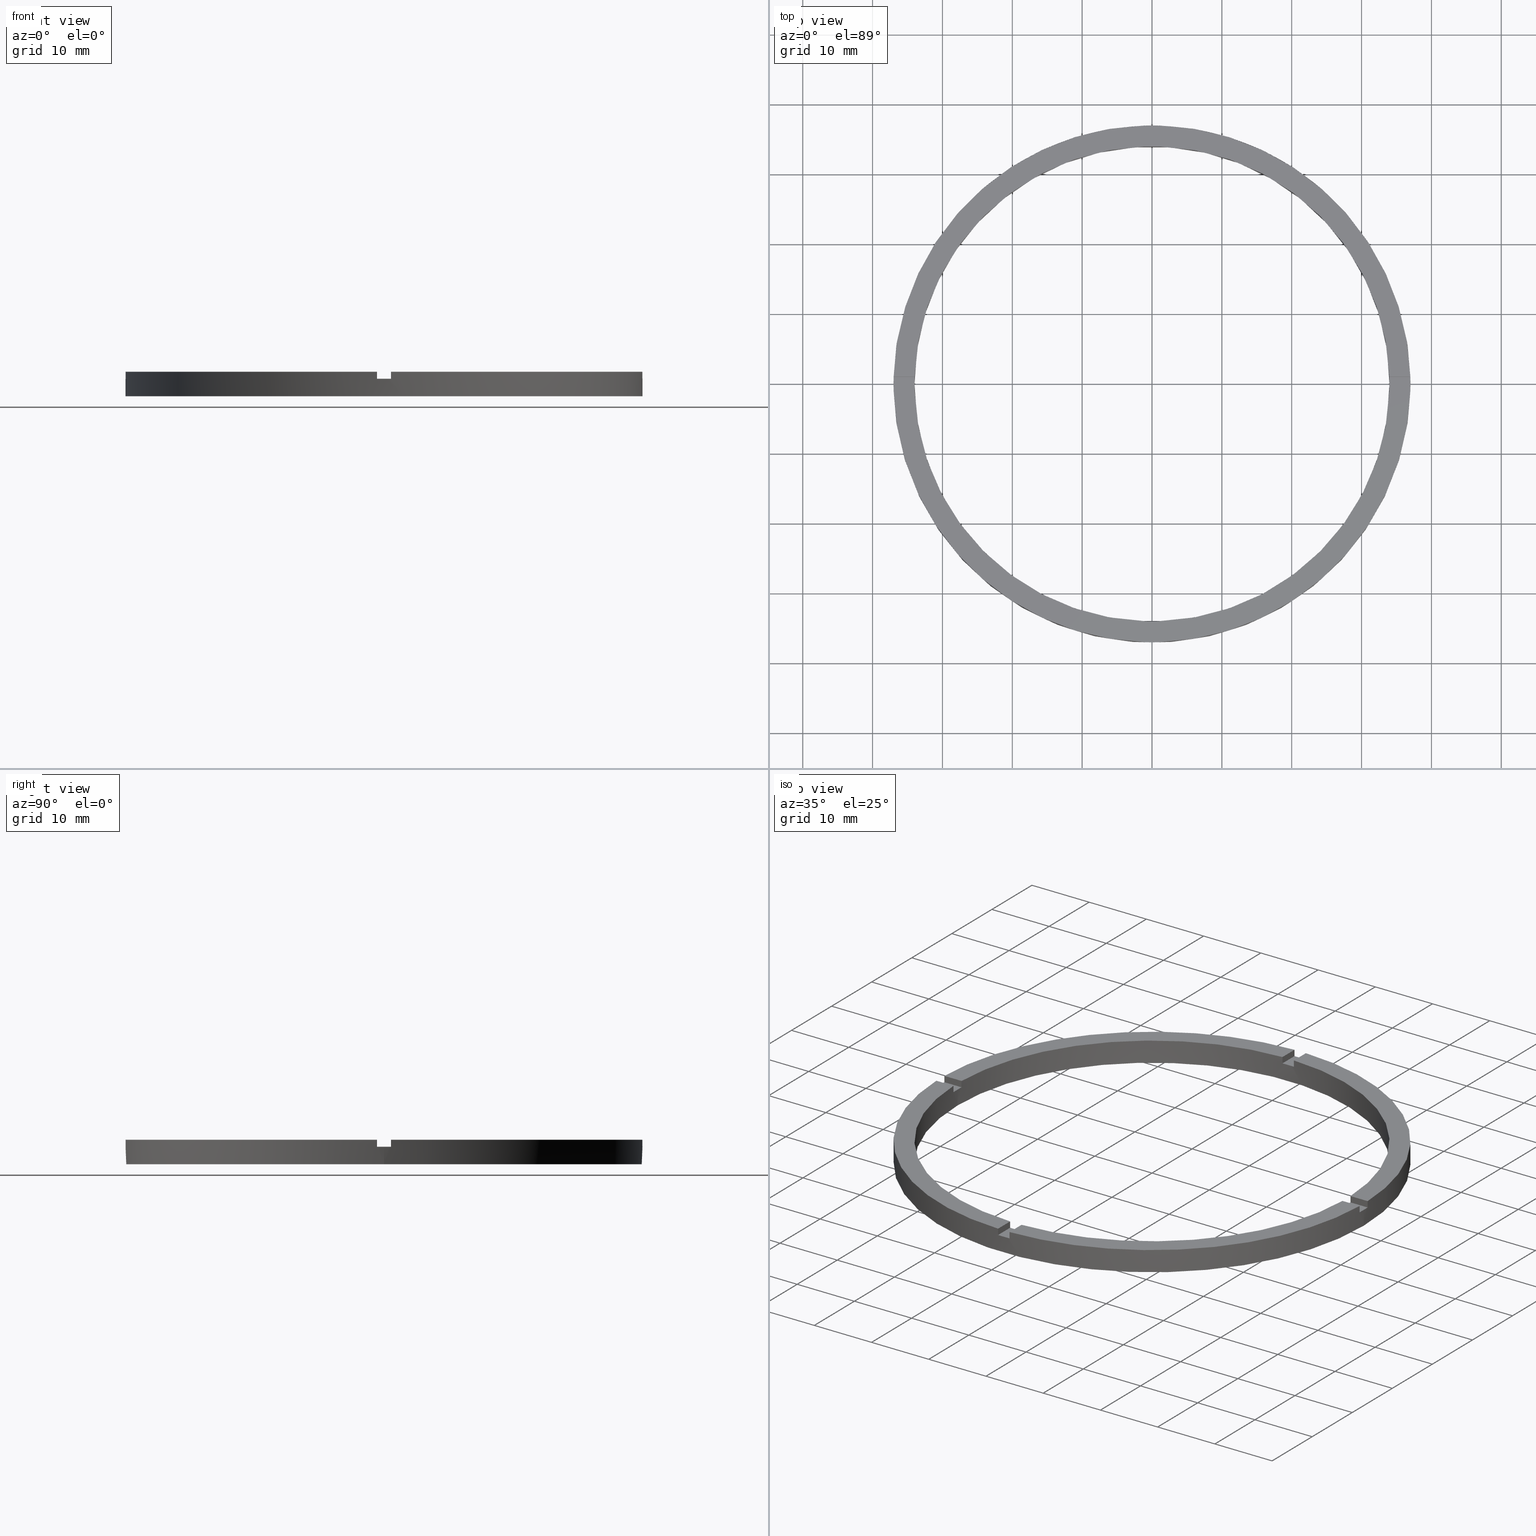
[diagram: canonical four-view strip — front | top / right | iso, engineering-drawing reading convention]
A machine part, canonical four-view strip (front | top / right | iso — engineering-drawing reading convention). The complete STEP part file that produces these views, byte-faithful:
ISO-10303-21;
HEADER;
FILE_DESCRIPTION (( 'STEP AP203' ),
    '1' );
FILE_NAME ('514152.step',
    '2024-12-26T02:42:34',
    ( 'MSI' ),
    ( '' ),
    'SwSTEP 2.0',
    'SolidWorks 2020',
    '' );
FILE_SCHEMA (( 'CONFIG_CONTROL_DESIGN' ));
ENDSEC;

DATA;
#1 = ORIENTED_EDGE ( 'NONE', *, *, #432, .F. ) ;
#2 = DIRECTION ( 'NONE',  ( -0.000000000000000000, -0.000000000000000000, -1.000000000000000000 ) ) ;
#3 = ORIENTED_EDGE ( 'NONE', *, *, #421, .F. ) ;
#4 = EDGE_CURVE ( 'NONE', #280, #445, #151, .T. ) ;
#5 = DIRECTION ( 'NONE',  ( 1.000000000000000000, 0.000000000000000000, 0.000000000000000000 ) ) ;
#6 = ORIENTED_EDGE ( 'NONE', *, *, #606, .T. ) ;
#7 = CARTESIAN_POINT ( 'NONE',  ( 0.000000000000000000, 0.000000000000000000, 2.500000000000000000 ) ) ;
#8 = DIRECTION ( 'NONE',  ( -0.000000000000000000, -0.000000000000000000, -1.000000000000000000 ) ) ;
#9 = EDGE_LOOP ( 'NONE', ( #477, #752, #726, #738 ) ) ;
#10 = ORIENTED_EDGE ( 'NONE', *, *, #94, .F. ) ;
#11 = DIRECTION ( 'NONE',  ( 1.000000000000000000, 0.000000000000000000, 0.000000000000000000 ) ) ;
#12 = ORIENTED_EDGE ( 'NONE', *, *, #437, .F. ) ;
#13 = AXIS2_PLACEMENT_3D ( 'NONE', #434, #485, #61 ) ;
#14 = CARTESIAN_POINT ( 'NONE',  ( 0.000000000000000000, 0.000000000000000000, 2.500000000000000000 ) ) ;
#15 = VERTEX_POINT ( 'NONE', #210 ) ;
#16 = ORIENTED_EDGE ( 'NONE', *, *, #722, .T. ) ;
#17 = DIRECTION ( 'NONE',  ( 0.000000000000000000, 0.000000000000000000, 1.000000000000000000 ) ) ;
#18 = DIRECTION ( 'NONE',  ( 1.000000000000000000, 0.000000000000000000, -0.000000000000000000 ) ) ;
#19 = EDGE_LOOP ( 'NONE', ( #641, #265, #134, #690 ) ) ;
#20 = DIRECTION ( 'NONE',  ( 1.000000000000000000, 0.000000000000000000, 0.000000000000000000 ) ) ;
#21 = VECTOR ( 'NONE', #282, 1000.000000000000000 ) ;
#22 = VERTEX_POINT ( 'NONE', #469 ) ;
#23 = EDGE_CURVE ( 'NONE', #697, #442, #661, .T. ) ;
#24 = PERSON ( 'δָ��', 'δָ��', 'δָ��', ('δָ��'), ('δָ��'), ('δָ��') ) ;
#25 = EDGE_LOOP ( 'NONE', ( #193, #266, #494, #447 ) ) ;
#26 = AXIS2_PLACEMENT_3D ( 'NONE', #634, #361, #176 ) ;
#27 = CARTESIAN_POINT ( 'NONE',  ( -36.98648401781385786, 0.9999999999999726885, 3.500000000000000000 ) ) ;
#28 = ADVANCED_FACE ( 'NONE', ( #672 ), #136, .F. ) ;
#29 = DIRECTION ( 'NONE',  ( 1.301042606982605074E-16, -1.000000000000000000, 0.000000000000000000 ) ) ;
#30 = EDGE_CURVE ( 'NONE', #772, #405, #418, .T. ) ;
#31 = DESIGN_CONTEXT ( 'detailed design', #749, 'design' ) ;
#32 = AXIS2_PLACEMENT_3D ( 'NONE', #399, #497, #633 ) ;
#33 = PERSON_AND_ORGANIZATION_ROLE ( 'creator' ) ;
#34 = CC_DESIGN_PERSON_AND_ORGANIZATION_ASSIGNMENT ( #97, #44, ( #760 ) ) ;
#35 = APPROVAL_STATUS ( 'not_yet_approved' ) ;
#36 = EDGE_CURVE ( 'NONE', #701, #185, #415, .T. ) ;
#37 = LINE ( 'NONE', #518, #317 ) ;
#38 = DIRECTION ( 'NONE',  ( 1.000000000000000000, 0.000000000000000000, 0.000000000000000000 ) ) ;
#39 = VECTOR ( 'NONE', #47, 1000.000000000000000 ) ;
#40 = PLANE ( 'NONE',  #26 ) ;
#41 = DIRECTION ( 'NONE',  ( 0.000000000000000000, 0.000000000000000000, 1.000000000000000000 ) ) ;
#42 = CIRCLE ( 'NONE', #630, 34.00000000000000000 ) ;
#43 = DIRECTION ( 'NONE',  ( 1.000000000000000000, 0.000000000000000000, 0.000000000000000000 ) ) ;
#44 = PERSON_AND_ORGANIZATION_ROLE ( 'design_supplier' ) ;
#45 = DIRECTION ( 'NONE',  ( 0.000000000000000000, 0.000000000000000000, 1.000000000000000000 ) ) ;
#46 = EDGE_CURVE ( 'NONE', #701, #452, #153, .T. ) ;
#47 = DIRECTION ( 'NONE',  ( -0.000000000000000000, -0.000000000000000000, -1.000000000000000000 ) ) ;
#48 = VECTOR ( 'NONE', #645, 1000.000000000000000 ) ;
#49 = FACE_OUTER_BOUND ( 'NONE', #209, .T. ) ;
#50 = CIRCLE ( 'NONE', #455, 34.00000000000000000 ) ;
#51 = CARTESIAN_POINT ( 'NONE',  ( -27.00000000000018474, -1.000000000000025313, 2.500000000000000000 ) ) ;
#52 = VECTOR ( 'NONE', #2, 1000.000000000000000 ) ;
#53 = CARTESIAN_POINT ( 'NONE',  ( -1.000000000000025091, 33.98529093593285211, 2.500000000000000000 ) ) ;
#54 = VECTOR ( 'NONE', #181, 1000.000000000000000 ) ;
#55 = CARTESIAN_POINT ( 'NONE',  ( 26.99999999999998934, -1.000000000000158318, 2.500000000000000000 ) ) ;
#56 = LINE ( 'NONE', #700, #39 ) ;
#57 = VECTOR ( 'NONE', #152, 1000.000000000000000 ) ;
#58 = CARTESIAN_POINT ( 'NONE',  ( -36.98648401781385786, -1.000000000000027311, 3.500000000000000000 ) ) ;
#59 = VECTOR ( 'NONE', #426, 1000.000000000000000 ) ;
#60 = CARTESIAN_POINT ( 'NONE',  ( 0.000000000000000000, 0.000000000000000000, 0.000000000000000000 ) ) ;
#61 = DIRECTION ( 'NONE',  ( -1.000000000000000000, 0.000000000000000000, 0.000000000000000000 ) ) ;
#62 = AXIS2_PLACEMENT_3D ( 'NONE', #7, #199, #139 ) ;
#63 = LINE ( 'NONE', #291, #321 ) ;
#64 = EDGE_CURVE ( 'NONE', #665, #185, #157, .T. ) ;
#65 = DATE_AND_TIME ( #573, #605 ) ;
#66 = DIRECTION ( 'NONE',  ( 1.000000000000000000, 0.000000000000000000, 0.000000000000000000 ) ) ;
#67 = LINE ( 'NONE', #211, #597 ) ;
#68 = AXIS2_PLACEMENT_3D ( 'NONE', #457, #711, #402 ) ;
#69 = FACE_OUTER_BOUND ( 'NONE', #655, .T. ) ;
#70 = PERSON_AND_ORGANIZATION ( #24, #87 ) ;
#71 = LINE ( 'NONE', #96, #334 ) ;
#72 = FACE_OUTER_BOUND ( 'NONE', #412, .T. ) ;
#73 = CARTESIAN_POINT ( 'NONE',  ( 0.000000000000000000, 0.000000000000000000, 2.500000000000000000 ) ) ;
#74 = CYLINDRICAL_SURFACE ( 'NONE', #522, 37.00000000000000000 ) ;
#75 = DIRECTION ( 'NONE',  ( -0.000000000000000000, -1.000000000000000000, -0.000000000000000000 ) ) ;
#76 = LINE ( 'NONE', #86, #84 ) ;
#77 = AXIS2_PLACEMENT_3D ( 'NONE', #502, #78, #543 ) ;
#78 = DIRECTION ( 'NONE',  ( 0.000000000000000000, 0.000000000000000000, 1.000000000000000000 ) ) ;
#79 = FACE_OUTER_BOUND ( 'NONE', #268, .T. ) ;
#80 = FACE_OUTER_BOUND ( 'NONE', #277, .T. ) ;
#81 = APPROVAL_PERSON_ORGANIZATION ( #95, #550, #287 ) ;
#82 = CIRCLE ( 'NONE', #138, 37.00000000000000000 ) ;
#83 = EDGE_CURVE ( 'NONE', #140, #442, #427, .T. ) ;
#84 = VECTOR ( 'NONE', #173, 1000.000000000000000 ) ;
#85 = APPROVAL_DATE_TIME ( #604, #408 ) ;
#86 = CARTESIAN_POINT ( 'NONE',  ( 0.9999999999998400169, -36.98648401781386497, 3.500000000000000000 ) ) ;
#87 = ORGANIZATION ( 'δָ��', 'δָ��', '' ) ;
#88 = CYLINDRICAL_SURFACE ( 'NONE', #106, 34.00000000000000000 ) ;
#89 = COORDINATED_UNIVERSAL_TIME_OFFSET ( 8, 0, .AHEAD. ) ;
#90 = CARTESIAN_POINT ( 'NONE',  ( 0.000000000000000000, 0.000000000000000000, 0.000000000000000000 ) ) ;
#91 = SHAPE_DEFINITION_REPRESENTATION ( #498, #596 ) ;
#92 = CC_DESIGN_DATE_AND_TIME_ASSIGNMENT ( #343, #458, ( #487 ) ) ;
#93 = ADVANCED_FACE ( 'NONE', ( #162 ), #231, .F. ) ;
#94 = EDGE_CURVE ( 'NONE', #657, #417, #161, .T. ) ;
#95 = PERSON_AND_ORGANIZATION ( #24, #87 ) ;
#96 = CARTESIAN_POINT ( 'NONE',  ( -1.000000000000025091, 33.98529093593285211, 3.500000000000000000 ) ) ;
#97 = PERSON_AND_ORGANIZATION ( #24, #87 ) ;
#98 = CALENDAR_DATE ( 2024, 26, 12 ) ;
#99 =( LENGTH_UNIT ( ) NAMED_UNIT ( * ) SI_UNIT ( .MILLI., .METRE. ) );
#100 = CARTESIAN_POINT ( 'NONE',  ( 0.000000000000000000, 0.000000000000000000, 2.500000000000000000 ) ) ;
#101 = EDGE_CURVE ( 'NONE', #452, #195, #423, .T. ) ;
#102 = CARTESIAN_POINT ( 'NONE',  ( -34.00000000000000000, 0.000000000000000000, 0.000000000000000000 ) ) ;
#103 = APPLICATION_PROTOCOL_DEFINITION ( 'international standard', 'config_control_design', 1994, #774 ) ;
#104 = CIRCLE ( 'NONE', #257, 37.00000000000000000 ) ;
#105 = CARTESIAN_POINT ( 'NONE',  ( -33.98529093593285921, 0.9999999999999731326, 2.500000000000000000 ) ) ;
#106 = AXIS2_PLACEMENT_3D ( 'NONE', #482, #221, #628 ) ;
#107 = DIRECTION ( 'NONE',  ( 1.000000000000000000, 0.000000000000000000, 0.000000000000000000 ) ) ;
#108 = DIRECTION ( 'NONE',  ( -1.301042606982605074E-16, 1.000000000000000000, 0.000000000000000000 ) ) ;
#109 = EDGE_CURVE ( 'NONE', #258, #715, #668, .T. ) ;
#110 = VECTOR ( 'NONE', #307, 1000.000000000000000 ) ;
#111 = VECTOR ( 'NONE', #289, 1000.000000000000000 ) ;
#112 = CARTESIAN_POINT ( 'NONE',  ( -33.98529093593285921, 0.9999999999999731326, 3.500000000000000000 ) ) ;
#113 = APPROVAL_STATUS ( 'not_yet_approved' ) ;
#114 = DIRECTION ( 'NONE',  ( 0.000000000000000000, 0.000000000000000000, 1.000000000000000000 ) ) ;
#115 = LINE ( 'NONE', #474, #376 ) ;
#116 = AXIS2_PLACEMENT_3D ( 'NONE', #73, #310, #38 ) ;
#117 = APPROVAL_STATUS ( 'not_yet_approved' ) ;
#118 = EDGE_CURVE ( 'NONE', #465, #659, #166, .T. ) ;
#119 = PLANE ( 'NONE',  #777 ) ;
#120 = VECTOR ( 'NONE', #169, 1000.000000000000000 ) ;
#121 = PLANE ( 'NONE',  #527 ) ;
#122 = EDGE_CURVE ( 'NONE', #715, #659, #675, .T. ) ;
#123 = DIRECTION ( 'NONE',  ( -6.505213034913025371E-17, 1.000000000000000000, 0.000000000000000000 ) ) ;
#124 = CARTESIAN_POINT ( 'NONE',  ( 0.000000000000000000, 0.000000000000000000, 2.500000000000000000 ) ) ;
#125 = DIRECTION ( 'NONE',  ( 6.505213034913025371E-17, -1.000000000000000000, 0.000000000000000000 ) ) ;
#126 = VERTEX_POINT ( 'NONE', #489 ) ;
#127 = EDGE_LOOP ( 'NONE', ( #217, #695, #767, #3 ) ) ;
#128 = CARTESIAN_POINT ( 'NONE',  ( 0.000000000000000000, 0.000000000000000000, 3.500000000000000000 ) ) ;
#129 = DIRECTION ( 'NONE',  ( -0.000000000000000000, -0.000000000000000000, -1.000000000000000000 ) ) ;
#130 = EDGE_CURVE ( 'NONE', #140, #22, #164, .T. ) ;
#131 = CARTESIAN_POINT ( 'NONE',  ( -1.000000000000160094, -36.98648401781385076, 2.500000000000000000 ) ) ;
#132 = DIRECTION ( 'NONE',  ( 0.000000000000000000, 0.000000000000000000, 1.000000000000000000 ) ) ;
#133 = DIRECTION ( 'NONE',  ( 0.000000000000000000, 1.000000000000000000, 0.000000000000000000 ) ) ;
#134 = ORIENTED_EDGE ( 'NONE', *, *, #261, .F. ) ;
#135 = ORIENTED_EDGE ( 'NONE', *, *, #453, .T. ) ;
#136 = PLANE ( 'NONE',  #747 ) ;
#137 = CARTESIAN_POINT ( 'NONE',  ( -1.000000000000025091, 36.98648401781385786, 3.500000000000000000 ) ) ;
#138 = AXIS2_PLACEMENT_3D ( 'NONE', #678, #216, #483 ) ;
#139 = DIRECTION ( 'NONE',  ( 1.000000000000000000, 0.000000000000000000, -0.000000000000000000 ) ) ;
#140 = VERTEX_POINT ( 'NONE', #105 ) ;
#141 = DIRECTION ( 'NONE',  ( 0.000000000000000000, 0.000000000000000000, 1.000000000000000000 ) ) ;
#142 = PLANE ( 'NONE',  #223 ) ;
#143 = CC_DESIGN_APPROVAL ( #550, ( #314 ) ) ;
#144 = ORIENTED_EDGE ( 'NONE', *, *, #285, .T. ) ;
#145 = ORIENTED_EDGE ( 'NONE', *, *, #558, .F. ) ;
#146 = EDGE_CURVE ( 'NONE', #208, #440, #365, .T. ) ;
#147 = EDGE_LOOP ( 'NONE', ( #388, #651, #391, #215, #16, #468, #135, #702, #401, #449, #191, #516 ) ) ;
#148 = DIRECTION ( 'NONE',  ( 1.000000000000000000, 0.000000000000000000, 0.000000000000000000 ) ) ;
#149 = ORIENTED_EDGE ( 'NONE', *, *, #23, .T. ) ;
#150 = EDGE_LOOP ( 'NONE', ( #12, #404 ) ) ;
#151 = CIRCLE ( 'NONE', #705, 34.00000000000000000 ) ;
#152 = DIRECTION ( 'NONE',  ( -1.000000000000000000, -6.505213034913025371E-17, -0.000000000000000000 ) ) ;
#153 = CIRCLE ( 'NONE', #435, 37.00000000000000000 ) ;
#154 = DIRECTION ( 'NONE',  ( 1.951563910473907735E-16, -1.000000000000000000, 0.000000000000000000 ) ) ;
#155 = VERTEX_POINT ( 'NONE', #284 ) ;
#156 = AXIS2_PLACEMENT_3D ( 'NONE', #128, #730, #637 ) ;
#157 = LINE ( 'NONE', #288, #674 ) ;
#158 = VECTOR ( 'NONE', #667, 1000.000000000000000 ) ;
#159 = PERSON_AND_ORGANIZATION_ROLE ( 'creator' ) ;
#160 = VECTOR ( 'NONE', #239, 1000.000000000000000 ) ;
#161 = CIRCLE ( 'NONE', #156, 34.00000000000000000 ) ;
#162 = FACE_OUTER_BOUND ( 'NONE', #25, .T. ) ;
#163 = VECTOR ( 'NONE', #433, 1000.000000000000000 ) ;
#164 = LINE ( 'NONE', #537, #429 ) ;
#165 = CC_DESIGN_APPROVAL ( #570, ( #487 ) ) ;
#166 = LINE ( 'NONE', #382, #425 ) ;
#167 = ADVANCED_FACE ( 'NONE', ( #366 ), #381, .F. ) ;
#168 = EDGE_CURVE ( 'NONE', #276, #465, #104, .T. ) ;
#169 = DIRECTION ( 'NONE',  ( -0.000000000000000000, -0.000000000000000000, -1.000000000000000000 ) ) ;
#170 = AXIS2_PLACEMENT_3D ( 'NONE', #766, #387, #525 ) ;
#171 = DIRECTION ( 'NONE',  ( 1.000000000000000000, 0.000000000000000000, -0.000000000000000000 ) ) ;
#172 = CARTESIAN_POINT ( 'NONE',  ( 33.98529093593285211, -1.000000000000157874, 3.500000000000000000 ) ) ;
#173 = DIRECTION ( 'NONE',  ( -0.000000000000000000, -0.000000000000000000, -1.000000000000000000 ) ) ;
#174 = EDGE_CURVE ( 'NONE', #22, #479, #631, .T. ) ;
#175 = AXIS2_PLACEMENT_3D ( 'NONE', #197, #256, #305 ) ;
#176 = DIRECTION ( 'NONE',  ( 1.000000000000000000, 0.000000000000000000, -0.000000000000000000 ) ) ;
#177 = DIRECTION ( 'NONE',  ( 0.000000000000000000, 0.000000000000000000, 1.000000000000000000 ) ) ;
#178 = CARTESIAN_POINT ( 'NONE',  ( -1.000000000000161426, -27.00000000000017764, 2.500000000000000000 ) ) ;
#179 = ORIENTED_EDGE ( 'NONE', *, *, #741, .F. ) ;
#180 = CC_DESIGN_DATE_AND_TIME_ASSIGNMENT ( #354, #768, ( #314 ) ) ;
#181 = DIRECTION ( 'NONE',  ( 1.000000000000000000, 1.951563910473907735E-16, -0.000000000000000000 ) ) ;
#182 = ORIENTED_EDGE ( 'NONE', *, *, #708, .F. ) ;
#183 = DIRECTION ( 'NONE',  ( 1.000000000000000000, 0.000000000000000000, 0.000000000000000000 ) ) ;
#184 = DIRECTION ( 'NONE',  ( 1.000000000000000000, 6.505213034913025371E-17, 0.000000000000000000 ) ) ;
#185 = VERTEX_POINT ( 'NONE', #438 ) ;
#186 = EDGE_CURVE ( 'NONE', #258, #185, #371, .T. ) ;
#187 = ORIENTED_EDGE ( 'NONE', *, *, #444, .F. ) ;
#188 = VERTEX_POINT ( 'NONE', #385 ) ;
#189 = CARTESIAN_POINT ( 'NONE',  ( 0.9999999999998395728, -33.98529093593285921, 3.500000000000000000 ) ) ;
#190 = DIRECTION ( 'NONE',  ( 0.000000000000000000, 0.000000000000000000, 1.000000000000000000 ) ) ;
#191 = ORIENTED_EDGE ( 'NONE', *, *, #358, .T. ) ;
#192 = ORIENTED_EDGE ( 'NONE', *, *, #506, .F. ) ;
#193 = ORIENTED_EDGE ( 'NONE', *, *, #255, .T. ) ;
#194 = AXIS2_PLACEMENT_3D ( 'NONE', #424, #529, #250 ) ;
#195 = VERTEX_POINT ( 'NONE', #503 ) ;
#196 = CARTESIAN_POINT ( 'NONE',  ( 0.000000000000000000, 0.000000000000000000, 2.500000000000000000 ) ) ;
#197 = CARTESIAN_POINT ( 'NONE',  ( 0.000000000000000000, 0.000000000000000000, 2.500000000000000000 ) ) ;
#198 = ORIENTED_EDGE ( 'NONE', *, *, #247, .T. ) ;
#199 = DIRECTION ( 'NONE',  ( 0.000000000000000000, -0.000000000000000000, 1.000000000000000000 ) ) ;
#200 = CARTESIAN_POINT ( 'NONE',  ( 0.9999999999999749090, 26.99999999999999645, 3.500000000000000000 ) ) ;
#201 = ORIENTED_EDGE ( 'NONE', *, *, #367, .T. ) ;
#202 = EDGE_LOOP ( 'NONE', ( #232, #6, #780, #694 ) ) ;
#203 = ORIENTED_EDGE ( 'NONE', *, *, #432, .T. ) ;
#204 = DIRECTION ( 'NONE',  ( -0.000000000000000000, -0.000000000000000000, -1.000000000000000000 ) ) ;
#205 = ORIENTED_EDGE ( 'NONE', *, *, #684, .T. ) ;
#206 = PLANE ( 'NONE',  #510 ) ;
#207 = ORIENTED_EDGE ( 'NONE', *, *, #174, .F. ) ;
#208 = VERTEX_POINT ( 'NONE', #546 ) ;
#209 = EDGE_LOOP ( 'NONE', ( #512, #687, #720, #413 ) ) ;
#210 = CARTESIAN_POINT ( 'NONE',  ( 0.9999999999999749090, 36.98648401781385786, 2.500000000000000000 ) ) ;
#211 = CARTESIAN_POINT ( 'NONE',  ( -1.000000000000161426, -27.00000000000017764, 3.500000000000000000 ) ) ;
#212 = ORIENTED_EDGE ( 'NONE', *, *, #437, .T. ) ;
#213 = EDGE_LOOP ( 'NONE', ( #144, #273 ) ) ;
#214 = ORIENTED_EDGE ( 'NONE', *, *, #146, .T. ) ;
#215 = ORIENTED_EDGE ( 'NONE', *, *, #292, .F. ) ;
#216 = DIRECTION ( 'NONE',  ( 0.000000000000000000, 0.000000000000000000, 1.000000000000000000 ) ) ;
#217 = ORIENTED_EDGE ( 'NONE', *, *, #367, .F. ) ;
#218 = AXIS2_PLACEMENT_3D ( 'NONE', #640, #235, #414 ) ;
#219 = ORIENTED_EDGE ( 'NONE', *, *, #765, .T. ) ;
#220 = ORIENTED_EDGE ( 'NONE', *, *, #544, .F. ) ;
#221 = DIRECTION ( 'NONE',  ( -0.000000000000000000, -0.000000000000000000, -1.000000000000000000 ) ) ;
#222 = ORIENTED_EDGE ( 'NONE', *, *, #619, .F. ) ;
#223 = AXIS2_PLACEMENT_3D ( 'NONE', #530, #316, #108 ) ;
#224 = CARTESIAN_POINT ( 'NONE',  ( 33.98529093593285921, 0.9999999999998421263, 3.500000000000000000 ) ) ;
#225 = ORIENTED_EDGE ( 'NONE', *, *, #544, .T. ) ;
#226 = CARTESIAN_POINT ( 'NONE',  ( -34.00000000000000000, 0.000000000000000000, 2.500000000000000000 ) ) ;
#227 = ADVANCED_FACE ( 'NONE', ( #623 ), #206, .T. ) ;
#228 = MECHANICAL_CONTEXT ( 'NONE', #774, 'mechanical' ) ;
#229 = EDGE_CURVE ( 'NONE', #397, #276, #374, .T. ) ;
#230 = ORIENTED_EDGE ( 'NONE', *, *, #36, .F. ) ;
#231 = PLANE ( 'NONE',  #478 ) ;
#232 = ORIENTED_EDGE ( 'NONE', *, *, #708, .T. ) ;
#233 = CARTESIAN_POINT ( 'NONE',  ( -37.00000000000000000, 0.000000000000000000, 2.500000000000000000 ) ) ;
#234 = EDGE_LOOP ( 'NONE', ( #508, #781, #179, #706 ) ) ;
#235 = DIRECTION ( 'NONE',  ( -1.951563910473907735E-16, 1.000000000000000000, 0.000000000000000000 ) ) ;
#236 = ORIENTED_EDGE ( 'NONE', *, *, #4, .F. ) ;
#237 = ORIENTED_EDGE ( 'NONE', *, *, #292, .T. ) ;
#238 = EDGE_CURVE ( 'NONE', #188, #195, #115, .T. ) ;
#239 = DIRECTION ( 'NONE',  ( -1.301042606982605074E-16, 1.000000000000000000, -0.000000000000000000 ) ) ;
#240 = CARTESIAN_POINT ( 'NONE',  ( -1.000000000000160094, -36.98648401781385076, 3.500000000000000000 ) ) ;
#241 = ORIENTED_EDGE ( 'NONE', *, *, #677, .T. ) ;
#242 = DIRECTION ( 'NONE',  ( 0.000000000000000000, 0.000000000000000000, 1.000000000000000000 ) ) ;
#243 = CARTESIAN_POINT ( 'NONE',  ( 0.9999999999998395728, -33.98529093593285921, 2.500000000000000000 ) ) ;
#244 = ORIENTED_EDGE ( 'NONE', *, *, #272, .F. ) ;
#245 = CARTESIAN_POINT ( 'NONE',  ( -1.000000000000025091, 26.99999999999999645, 3.500000000000000000 ) ) ;
#246 = DIRECTION ( 'NONE',  ( -1.000000000000000000, -1.301042606982605074E-16, 0.000000000000000000 ) ) ;
#247 = EDGE_CURVE ( 'NONE', #779, #746, #625, .T. ) ;
#248 = ORIENTED_EDGE ( 'NONE', *, *, #46, .T. ) ;
#249 = DIRECTION ( 'NONE',  ( -0.000000000000000000, 0.000000000000000000, 1.000000000000000000 ) ) ;
#250 = DIRECTION ( 'NONE',  ( 1.000000000000000000, 0.000000000000000000, 0.000000000000000000 ) ) ;
#251 = ORIENTED_EDGE ( 'NONE', *, *, #83, .T. ) ;
#252 = AXIS2_PLACEMENT_3D ( 'NONE', #509, #356, #267 ) ;
#253 = DIRECTION ( 'NONE',  ( 1.000000000000000000, -0.000000000000000000, 0.000000000000000000 ) ) ;
#254 = ORIENTED_EDGE ( 'NONE', *, *, #491, .T. ) ;
#255 = EDGE_CURVE ( 'NONE', #693, #697, #621, .T. ) ;
#256 = DIRECTION ( 'NONE',  ( 0.000000000000000000, 0.000000000000000000, 1.000000000000000000 ) ) ;
#257 = AXIS2_PLACEMENT_3D ( 'NONE', #676, #734, #312 ) ;
#258 = VERTEX_POINT ( 'NONE', #363 ) ;
#259 = CARTESIAN_POINT ( 'NONE',  ( 0.9999999999998386846, -27.00000000000017764, 3.500000000000000000 ) ) ;
#260 = ORIENTED_EDGE ( 'NONE', *, *, #238, .T. ) ;
#261 = EDGE_CURVE ( 'NONE', #442, #126, #378, .T. ) ;
#262 = DIRECTION ( 'NONE',  ( 0.000000000000000000, 0.000000000000000000, 1.000000000000000000 ) ) ;
#263 = EDGE_CURVE ( 'NONE', #140, #456, #632, .T. ) ;
#264 = ORIENTED_EDGE ( 'NONE', *, *, #377, .T. ) ;
#265 = ORIENTED_EDGE ( 'NONE', *, *, #444, .T. ) ;
#266 = ORIENTED_EDGE ( 'NONE', *, *, #710, .T. ) ;
#267 = DIRECTION ( 'NONE',  ( 1.000000000000000000, 0.000000000000000000, 0.000000000000000000 ) ) ;
#268 = EDGE_LOOP ( 'NONE', ( #241, #264, #396, #201 ) ) ;
#269 = CC_DESIGN_PERSON_AND_ORGANIZATION_ASSIGNMENT ( #70, #33, ( #487 ) ) ;
#270 = EDGE_LOOP ( 'NONE', ( #493, #707, #443, #230 ) ) ;
#271 = ORIENTED_EDGE ( 'NONE', *, *, #517, .F. ) ;
#272 = EDGE_CURVE ( 'NONE', #405, #440, #384, .T. ) ;
#273 = ORIENTED_EDGE ( 'NONE', *, *, #4, .T. ) ;
#274 = ADVANCED_FACE ( 'NONE', ( #636 ), #301, .T. ) ;
#275 = DIRECTION ( 'NONE',  ( -0.000000000000000000, 0.000000000000000000, 1.000000000000000000 ) ) ;
#276 = VERTEX_POINT ( 'NONE', #131 ) ;
#277 = EDGE_LOOP ( 'NONE', ( #448, #251, #750, #717 ) ) ;
#278 = CARTESIAN_POINT ( 'NONE',  ( -1.000000000000160538, -33.98529093593285211, 3.500000000000000000 ) ) ;
#279 =( NAMED_UNIT ( * ) PLANE_ANGLE_UNIT ( ) SI_UNIT ( $, .RADIAN. ) );
#280 = VERTEX_POINT ( 'NONE', #727 ) ;
#281 = AXIS2_PLACEMENT_3D ( 'NONE', #664, #649, #534 ) ;
#282 = DIRECTION ( 'NONE',  ( 1.000000000000000000, 6.505213034913025371E-17, 0.000000000000000000 ) ) ;
#283 = PRODUCT_RELATED_PRODUCT_CATEGORY ( 'detail', '', ( #547 ) ) ;
#284 = CARTESIAN_POINT ( 'NONE',  ( 37.00000000000000000, 4.531193156845206793E-15, 0.000000000000000000 ) ) ;
#285 = EDGE_CURVE ( 'NONE', #445, #280, #565, .T. ) ;
#286 = DIRECTION ( 'NONE',  ( 0.000000000000000000, -0.000000000000000000, 1.000000000000000000 ) ) ;
#287 = APPROVAL_ROLE ( '' ) ;
#288 = CARTESIAN_POINT ( 'NONE',  ( 26.99999999999998934, -1.000000000000158318, 3.500000000000000000 ) ) ;
#289 = DIRECTION ( 'NONE',  ( -0.000000000000000000, -1.000000000000000000, -0.000000000000000000 ) ) ;
#290 = EDGE_CURVE ( 'NONE', #417, #520, #566, .T. ) ;
#291 = CARTESIAN_POINT ( 'NONE',  ( -1.000000000000160538, -33.98529093593285211, 3.500000000000000000 ) ) ;
#292 = EDGE_CURVE ( 'NONE', #456, #445, #56, .T. ) ;
#293 = CARTESIAN_POINT ( 'NONE',  ( 0.000000000000000000, 0.000000000000000000, 3.500000000000000000 ) ) ;
#294 = DIRECTION ( 'NONE',  ( 1.301042606982605074E-16, -1.000000000000000000, 0.000000000000000000 ) ) ;
#295 = CARTESIAN_POINT ( 'NONE',  ( -36.98648401781385786, -1.000000000000027311, 2.500000000000000000 ) ) ;
#296 = VECTOR ( 'NONE', #133, 1000.000000000000000 ) ;
#297 = DIRECTION ( 'NONE',  ( 1.000000000000000000, 0.000000000000000000, -0.000000000000000000 ) ) ;
#298 = CC_DESIGN_PERSON_AND_ORGANIZATION_ASSIGNMENT ( #347, #480, ( #547 ) ) ;
#299 = CIRCLE ( 'NONE', #698, 37.00000000000000000 ) ;
#300 = LINE ( 'NONE', #137, #548 ) ;
#301 = CYLINDRICAL_SURFACE ( 'NONE', #13, 37.00000000000000000 ) ;
#302 = LINE ( 'NONE', #618, #296 ) ;
#303 =( GEOMETRIC_REPRESENTATION_CONTEXT ( 3 ) GLOBAL_UNCERTAINTY_ASSIGNED_CONTEXT ( ( #736 ) ) GLOBAL_UNIT_ASSIGNED_CONTEXT ( ( #99, #279, #464 ) ) REPRESENTATION_CONTEXT ( 'NONE', 'WORKASPACE' ) );
#304 = CIRCLE ( 'NONE', #175, 37.00000000000000000 ) ;
#305 = DIRECTION ( 'NONE',  ( 1.000000000000000000, 0.000000000000000000, 0.000000000000000000 ) ) ;
#306 = LINE ( 'NONE', #560, #54 ) ;
#307 = DIRECTION ( 'NONE',  ( 1.301042606982605074E-16, -1.000000000000000000, 0.000000000000000000 ) ) ;
#308 = AXIS2_PLACEMENT_3D ( 'NONE', #782, #539, #656 ) ;
#309 = LINE ( 'NONE', #532, #52 ) ;
#310 = DIRECTION ( 'NONE',  ( 0.000000000000000000, 0.000000000000000000, 1.000000000000000000 ) ) ;
#311 = FACE_OUTER_BOUND ( 'NONE', #19, .T. ) ;
#312 = DIRECTION ( 'NONE',  ( 1.000000000000000000, 0.000000000000000000, 0.000000000000000000 ) ) ;
#313 = FACE_OUTER_BOUND ( 'NONE', #9, .T. ) ;
#314 = SECURITY_CLASSIFICATION ( '', '', #691 ) ;
#315 = LINE ( 'NONE', #364, #59 ) ;
#316 = DIRECTION ( 'NONE',  ( 1.000000000000000000, 1.301042606982605074E-16, 0.000000000000000000 ) ) ;
#317 = VECTOR ( 'NONE', #375, 1000.000000000000000 ) ;
#318 = FACE_OUTER_BOUND ( 'NONE', #745, .T. ) ;
#319 = CIRCLE ( 'NONE', #308, 34.00000000000000000 ) ;
#320 = PLANE ( 'NONE',  #666 ) ;
#321 = VECTOR ( 'NONE', #644, 1000.000000000000000 ) ;
#322 = VECTOR ( 'NONE', #114, 1000.000000000000000 ) ;
#323 = APPROVAL_DATE_TIME ( #65, #570 ) ;
#324 = CIRCLE ( 'NONE', #360, 37.00000000000000000 ) ;
#325 = AXIS2_PLACEMENT_3D ( 'NONE', #14, #615, #778 ) ;
#326 = VECTOR ( 'NONE', #242, 1000.000000000000000 ) ;
#327 = FACE_OUTER_BOUND ( 'NONE', #758, .T. ) ;
#328 = DIRECTION ( 'NONE',  ( 1.000000000000000000, 0.000000000000000000, 0.000000000000000000 ) ) ;
#329 = CIRCLE ( 'NONE', #252, 34.00000000000000000 ) ;
#330 = LINE ( 'NONE', #764, #341 ) ;
#331 = LINE ( 'NONE', #577, #21 ) ;
#332 = PLANE ( 'NONE',  #68 ) ;
#333 = DIRECTION ( 'NONE',  ( 0.000000000000000000, 0.000000000000000000, 1.000000000000000000 ) ) ;
#334 = VECTOR ( 'NONE', #567, 1000.000000000000000 ) ;
#335 = VECTOR ( 'NONE', #348, 1000.000000000000000 ) ;
#336 = PLANE ( 'NONE',  #62 ) ;
#337 = LOCAL_TIME ( 10, 42, 34.00000000000000000, #351 ) ;
#338 = CIRCLE ( 'NONE', #660, 37.00000000000000000 ) ;
#339 = COORDINATED_UNIVERSAL_TIME_OFFSET ( 8, 0, .AHEAD. ) ;
#340 = ADVANCED_FACE ( 'NONE', ( #572 ), #119, .F. ) ;
#341 = VECTOR ( 'NONE', #755, 1000.000000000000000 ) ;
#342 = FACE_OUTER_BOUND ( 'NONE', #486, .T. ) ;
#343 = DATE_AND_TIME ( #616, #372 ) ;
#344 = AXIS2_PLACEMENT_3D ( 'NONE', #753, #333, #410 ) ;
#345 = CALENDAR_DATE ( 2024, 26, 12 ) ;
#346 = CARTESIAN_POINT ( 'NONE',  ( 0.9999999999998395728, -33.98529093593285921, 3.500000000000000000 ) ) ;
#347 = PERSON_AND_ORGANIZATION ( #24, #87 ) ;
#348 = DIRECTION ( 'NONE',  ( -0.000000000000000000, -0.000000000000000000, -1.000000000000000000 ) ) ;
#349 = LOCAL_TIME ( 10, 42, 34.00000000000000000, #89 ) ;
#350 = CIRCLE ( 'NONE', #390, 34.00000000000000000 ) ;
#351 = COORDINATED_UNIVERSAL_TIME_OFFSET ( 8, 0, .AHEAD. ) ;
#352 = ADVANCED_FACE ( 'NONE', ( #311 ), #492, .T. ) ;
#353 = DIRECTION ( 'NONE',  ( 0.000000000000000000, 0.000000000000000000, 1.000000000000000000 ) ) ;
#354 = DATE_AND_TIME ( #98, #337 ) ;
#355 = FACE_BOUND ( 'NONE', #213, .T. ) ;
#356 = DIRECTION ( 'NONE',  ( 0.000000000000000000, 0.000000000000000000, 1.000000000000000000 ) ) ;
#357 = AXIS2_PLACEMENT_3D ( 'NONE', #770, #45, #419 ) ;
#358 = EDGE_CURVE ( 'NONE', #715, #665, #42, .T. ) ;
#359 = DIRECTION ( 'NONE',  ( 1.000000000000000000, 0.000000000000000000, 0.000000000000000000 ) ) ;
#360 = AXIS2_PLACEMENT_3D ( 'NONE', #739, #587, #392 ) ;
#361 = DIRECTION ( 'NONE',  ( 0.000000000000000000, 0.000000000000000000, 1.000000000000000000 ) ) ;
#362 = DIRECTION ( 'NONE',  ( 0.000000000000000000, 0.000000000000000000, 1.000000000000000000 ) ) ;
#363 = CARTESIAN_POINT ( 'NONE',  ( 0.9999999999998400169, -36.98648401781386497, 3.500000000000000000 ) ) ;
#364 = CARTESIAN_POINT ( 'NONE',  ( -37.00000000000000000, 0.000000000000000000, 3.500000000000000000 ) ) ;
#365 = LINE ( 'NONE', #496, #120 ) ;
#366 = FACE_OUTER_BOUND ( 'NONE', #147, .T. ) ;
#367 = EDGE_CURVE ( 'NONE', #538, #15, #302, .T. ) ;
#368 = CARTESIAN_POINT ( 'NONE',  ( 37.00000000000000000, 4.531193156845206793E-15, 2.500000000000000000 ) ) ;
#369 = PLANE ( 'NONE',  #431 ) ;
#370 = DIRECTION ( 'NONE',  ( 1.000000000000000000, 1.951563910473907735E-16, -0.000000000000000000 ) ) ;
#371 = CIRCLE ( 'NONE', #77, 37.00000000000000000 ) ;
#372 = LOCAL_TIME ( 10, 42, 34.00000000000000000, #584 ) ;
#373 = DIRECTION ( 'NONE',  ( 1.000000000000000000, 6.505213034913025371E-17, 0.000000000000000000 ) ) ;
#374 = LINE ( 'NONE', #713, #110 ) ;
#375 = DIRECTION ( 'NONE',  ( 0.000000000000000000, 0.000000000000000000, 1.000000000000000000 ) ) ;
#376 = VECTOR ( 'NONE', #8, 1000.000000000000000 ) ;
#377 = EDGE_CURVE ( 'NONE', #526, #658, #549, .T. ) ;
#378 = LINE ( 'NONE', #541, #383 ) ;
#379 = DIRECTION ( 'NONE',  ( -0.000000000000000000, -0.000000000000000000, -1.000000000000000000 ) ) ;
#380 = CARTESIAN_POINT ( 'NONE',  ( 0.000000000000000000, 0.000000000000000000, 2.500000000000000000 ) ) ;
#381 = CYLINDRICAL_SURFACE ( 'NONE', #557, 34.00000000000000000 ) ;
#382 = CARTESIAN_POINT ( 'NONE',  ( 0.9999999999998386846, -27.00000000000017764, 2.500000000000000000 ) ) ;
#383 = VECTOR ( 'NONE', #652, 1000.000000000000000 ) ;
#384 = LINE ( 'NONE', #51, #386 ) ;
#385 = CARTESIAN_POINT ( 'NONE',  ( 36.98648401781386497, 0.9999999999998423483, 3.500000000000000000 ) ) ;
#386 = VECTOR ( 'NONE', #370, 1000.000000000000000 ) ;
#387 = DIRECTION ( 'NONE',  ( 0.000000000000000000, 0.000000000000000000, 1.000000000000000000 ) ) ;
#388 = ORIENTED_EDGE ( 'NONE', *, *, #620, .T. ) ;
#389 = ORIENTED_EDGE ( 'NONE', *, *, #677, .F. ) ;
#390 = AXIS2_PLACEMENT_3D ( 'NONE', #100, #275, #328 ) ;
#391 = ORIENTED_EDGE ( 'NONE', *, *, #285, .F. ) ;
#392 = DIRECTION ( 'NONE',  ( 1.000000000000000000, 0.000000000000000000, 0.000000000000000000 ) ) ;
#393 = EDGE_CURVE ( 'NONE', #693, #526, #300, .T. ) ;
#394 = ORIENTED_EDGE ( 'NONE', *, *, #551, .F. ) ;
#395 = AXIS2_PLACEMENT_3D ( 'NONE', #490, #123, #409 ) ;
#396 = ORIENTED_EDGE ( 'NONE', *, *, #491, .F. ) ;
#397 = VERTEX_POINT ( 'NONE', #725 ) ;
#398 = AXIS2_PLACEMENT_3D ( 'NONE', #380, #436, #20 ) ;
#399 = CARTESIAN_POINT ( 'NONE',  ( 0.000000000000000000, 0.000000000000000000, 3.500000000000000000 ) ) ;
#400 = EDGE_CURVE ( 'NONE', #479, #405, #304, .T. ) ;
#401 = ORIENTED_EDGE ( 'NONE', *, *, #741, .T. ) ;
#402 = DIRECTION ( 'NONE',  ( 1.000000000000000000, 0.000000000000000000, -0.000000000000000000 ) ) ;
#403 = APPLICATION_PROTOCOL_DEFINITION ( 'international standard', 'config_control_design', 1994, #749 ) ;
#404 = ORIENTED_EDGE ( 'NONE', *, *, #563, .F. ) ;
#405 = VERTEX_POINT ( 'NONE', #295 ) ;
#406 = CLOSED_SHELL ( 'NONE', ( #167, #683, #352, #624, #460, #227, #756, #274, #680, #559, #629, #647, #554, #513, #642, #450, #340, #773, #93, #28, #743 ) ) ;
#407 = ORIENTED_EDGE ( 'NONE', *, *, #563, .T. ) ;
#408 = APPROVAL ( #35, 'δָ��' ) ;
#409 = DIRECTION ( 'NONE',  ( -1.000000000000000000, -6.505213034913025371E-17, 0.000000000000000000 ) ) ;
#410 = DIRECTION ( 'NONE',  ( 1.000000000000000000, 0.000000000000000000, 0.000000000000000000 ) ) ;
#411 = CARTESIAN_POINT ( 'NONE',  ( 0.000000000000000000, 0.000000000000000000, 3.500000000000000000 ) ) ;
#412 = EDGE_LOOP ( 'NONE', ( #203, #214, #244, #481 ) ) ;
#413 = ORIENTED_EDGE ( 'NONE', *, *, #186, .T. ) ;
#414 = DIRECTION ( 'NONE',  ( -1.000000000000000000, -1.951563910473907735E-16, 0.000000000000000000 ) ) ;
#415 = LINE ( 'NONE', #612, #670 ) ;
#416 = DIRECTION ( 'NONE',  ( -1.301042606982605074E-16, 1.000000000000000000, -0.000000000000000000 ) ) ;
#417 = VERTEX_POINT ( 'NONE', #614 ) ;
#418 = LINE ( 'NONE', #58, #673 ) ;
#419 = DIRECTION ( 'NONE',  ( 1.000000000000000000, 0.000000000000000000, 0.000000000000000000 ) ) ;
#420 = CARTESIAN_POINT ( 'NONE',  ( 0.9999999999999749090, 33.98529093593285921, 2.500000000000000000 ) ) ;
#421 = EDGE_CURVE ( 'NONE', #15, #520, #37, .T. ) ;
#422 = CARTESIAN_POINT ( 'NONE',  ( -36.98648401781385786, -1.000000000000027311, 3.500000000000000000 ) ) ;
#423 = CIRCLE ( 'NONE', #116, 37.00000000000000000 ) ;
#424 = CARTESIAN_POINT ( 'NONE',  ( 0.000000000000000000, 0.000000000000000000, 2.500000000000000000 ) ) ;
#425 = VECTOR ( 'NONE', #416, 1000.000000000000000 ) ;
#426 = DIRECTION ( 'NONE',  ( -0.000000000000000000, -0.000000000000000000, -1.000000000000000000 ) ) ;
#427 = LINE ( 'NONE', #112, #158 ) ;
#428 = MANIFOLD_SOLID_BREP ( '�г�-����1', #406 ) ;
#429 = VECTOR ( 'NONE', #689, 1000.000000000000000 ) ;
#430 = CARTESIAN_POINT ( 'NONE',  ( -33.98529093593285921, 0.9999999999999731326, 3.500000000000000000 ) ) ;
#431 = AXIS2_PLACEMENT_3D ( 'NONE', #484, #249, #183 ) ;
#432 = EDGE_CURVE ( 'NONE', #772, #208, #306, .T. ) ;
#433 = DIRECTION ( 'NONE',  ( -0.000000000000000000, -0.000000000000000000, -1.000000000000000000 ) ) ;
#434 = CARTESIAN_POINT ( 'NONE',  ( 0.000000000000000000, 0.000000000000000000, 3.500000000000000000 ) ) ;
#435 = AXIS2_PLACEMENT_3D ( 'NONE', #196, #132, #43 ) ;
#436 = DIRECTION ( 'NONE',  ( 0.000000000000000000, 0.000000000000000000, 1.000000000000000000 ) ) ;
#437 = EDGE_CURVE ( 'NONE', #466, #155, #299, .T. ) ;
#438 = CARTESIAN_POINT ( 'NONE',  ( 36.98648401781385076, -1.000000000000157652, 3.500000000000000000 ) ) ;
#439 = VERTEX_POINT ( 'NONE', #681 ) ;
#440 = VERTEX_POINT ( 'NONE', #762 ) ;
#441 = CC_DESIGN_PERSON_AND_ORGANIZATION_ASSIGNMENT ( #592, #159, ( #760 ) ) ;
#442 = VERTEX_POINT ( 'NONE', #430 ) ;
#443 = ORIENTED_EDGE ( 'NONE', *, *, #64, .T. ) ;
#444 = EDGE_CURVE ( 'NONE', #693, #126, #576, .T. ) ;
#445 = VERTEX_POINT ( 'NONE', #102 ) ;
#446 = CARTESIAN_POINT ( 'NONE',  ( 0.9999999999999749090, 33.98529093593285921, 3.500000000000000000 ) ) ;
#447 = ORIENTED_EDGE ( 'NONE', *, *, #393, .F. ) ;
#448 = ORIENTED_EDGE ( 'NONE', *, *, #130, .F. ) ;
#449 = ORIENTED_EDGE ( 'NONE', *, *, #122, .F. ) ;
#450 = ADVANCED_FACE ( 'NONE', ( #555 ), #748, .F. ) ;
#451 = ORIENTED_EDGE ( 'NONE', *, *, #46, .F. ) ;
#452 = VERTEX_POINT ( 'NONE', #368 ) ;
#453 = EDGE_CURVE ( 'NONE', #208, #454, #319, .T. ) ;
#454 = VERTEX_POINT ( 'NONE', #278 ) ;
#455 = AXIS2_PLACEMENT_3D ( 'NONE', #718, #286, #5 ) ;
#456 = VERTEX_POINT ( 'NONE', #226 ) ;
#457 = CARTESIAN_POINT ( 'NONE',  ( 0.000000000000000000, 0.000000000000000000, 3.500000000000000000 ) ) ;
#458 = DATE_TIME_ROLE ( 'creation_date' ) ;
#459 = ORIENTED_EDGE ( 'NONE', *, *, #551, .T. ) ;
#460 = ADVANCED_FACE ( 'NONE', ( #49 ), #332, .T. ) ;
#461 = ORIENTED_EDGE ( 'NONE', *, *, #663, .T. ) ;
#462 = ORIENTED_EDGE ( 'NONE', *, *, #83, .F. ) ;
#463 = CC_DESIGN_PERSON_AND_ORGANIZATION_ASSIGNMENT ( #611, #763, ( #314 ) ) ;
#464 =( NAMED_UNIT ( * ) SI_UNIT ( $, .STERADIAN. ) SOLID_ANGLE_UNIT ( ) );
#465 = VERTEX_POINT ( 'NONE', #650 ) ;
#466 = VERTEX_POINT ( 'NONE', #638 ) ;
#467 = ORIENTED_EDGE ( 'NONE', *, *, #118, .F. ) ;
#468 = ORIENTED_EDGE ( 'NONE', *, *, #146, .F. ) ;
#469 = CARTESIAN_POINT ( 'NONE',  ( -36.98648401781385786, 0.9999999999999726885, 2.500000000000000000 ) ) ;
#470 = CARTESIAN_POINT ( 'NONE',  ( 37.00000000000000000, 4.531193156845206793E-15, 3.500000000000000000 ) ) ;
#471 = PLANE ( 'NONE',  #626 ) ;
#472 = ORIENTED_EDGE ( 'NONE', *, *, #263, .T. ) ;
#473 = DIRECTION ( 'NONE',  ( 0.000000000000000000, -0.000000000000000000, 1.000000000000000000 ) ) ;
#474 = CARTESIAN_POINT ( 'NONE',  ( 36.98648401781386497, 0.9999999999998423483, 3.500000000000000000 ) ) ;
#475 = ORIENTED_EDGE ( 'NONE', *, *, #109, .T. ) ;
#476 = PLANE ( 'NONE',  #170 ) ;
#477 = ORIENTED_EDGE ( 'NONE', *, *, #229, .F. ) ;
#478 = AXIS2_PLACEMENT_3D ( 'NONE', #617, #761, #17 ) ;
#479 = VERTEX_POINT ( 'NONE', #233 ) ;
#480 = PERSON_AND_ORGANIZATION_ROLE ( 'design_owner' ) ;
#481 = ORIENTED_EDGE ( 'NONE', *, *, #30, .F. ) ;
#482 = CARTESIAN_POINT ( 'NONE',  ( 0.000000000000000000, 0.000000000000000000, 3.500000000000000000 ) ) ;
#483 = DIRECTION ( 'NONE',  ( 1.000000000000000000, 0.000000000000000000, 0.000000000000000000 ) ) ;
#484 = CARTESIAN_POINT ( 'NONE',  ( 0.000000000000000000, 0.000000000000000000, 2.500000000000000000 ) ) ;
#485 = DIRECTION ( 'NONE',  ( -0.000000000000000000, -0.000000000000000000, -1.000000000000000000 ) ) ;
#486 = EDGE_LOOP ( 'NONE', ( #475, #757, #467, #220 ) ) ;
#487 = PRODUCT_DEFINITION ( 'δ֪', '', #760, #31 ) ;
#488 = ORIENTED_EDGE ( 'NONE', *, *, #400, .F. ) ;
#489 = CARTESIAN_POINT ( 'NONE',  ( -36.98648401781385786, 0.9999999999999726885, 3.500000000000000000 ) ) ;
#490 = CARTESIAN_POINT ( 'NONE',  ( 26.99999999999998934, 0.9999999999998416822, 2.500000000000000000 ) ) ;
#491 = EDGE_CURVE ( 'NONE', #538, #658, #50, .T. ) ;
#492 = PLANE ( 'NONE',  #590 ) ;
#493 = ORIENTED_EDGE ( 'NONE', *, *, #684, .F. ) ;
#494 = ORIENTED_EDGE ( 'NONE', *, *, #377, .F. ) ;
#495 = EDGE_LOOP ( 'NONE', ( #145, #704, #1, #461 ) ) ;
#496 = CARTESIAN_POINT ( 'NONE',  ( -33.98529093593285211, -1.000000000000026867, 3.500000000000000000 ) ) ;
#497 = DIRECTION ( 'NONE',  ( 0.000000000000000000, 0.000000000000000000, 1.000000000000000000 ) ) ;
#498 = PRODUCT_DEFINITION_SHAPE ( 'NONE', 'NONE',  #487 ) ;
#499 = AXIS2_PLACEMENT_3D ( 'NONE', #124, #177, #297 ) ;
#500 = EDGE_CURVE ( 'NONE', #452, #155, #569, .T. ) ;
#501 = ORIENTED_EDGE ( 'NONE', *, *, #174, .T. ) ;
#502 = CARTESIAN_POINT ( 'NONE',  ( 0.000000000000000000, 0.000000000000000000, 3.500000000000000000 ) ) ;
#503 = CARTESIAN_POINT ( 'NONE',  ( 36.98648401781386497, 0.9999999999998423483, 2.500000000000000000 ) ) ;
#504 = ORIENTED_EDGE ( 'NONE', *, *, #517, .T. ) ;
#505 = ORIENTED_EDGE ( 'NONE', *, *, #130, .T. ) ;
#506 = EDGE_CURVE ( 'NONE', #779, #280, #309, .T. ) ;
#507 = ORIENTED_EDGE ( 'NONE', *, *, #663, .F. ) ;
#508 = ORIENTED_EDGE ( 'NONE', *, *, #168, .T. ) ;
#509 = CARTESIAN_POINT ( 'NONE',  ( 0.000000000000000000, 0.000000000000000000, 2.500000000000000000 ) ) ;
#510 = AXIS2_PLACEMENT_3D ( 'NONE', #671, #262, #733 ) ;
#511 = ORIENTED_EDGE ( 'NONE', *, *, #393, .T. ) ;
#512 = ORIENTED_EDGE ( 'NONE', *, *, #64, .F. ) ;
#513 = ADVANCED_FACE ( 'NONE', ( #313 ), #121, .F. ) ;
#514 = EDGE_LOOP ( 'NONE', ( #653, #451, #524, #688, #225, #729, #219, #507, #754, #488, #504, #212 ) ) ;
#515 = ORIENTED_EDGE ( 'NONE', *, *, #722, .F. ) ;
#516 = ORIENTED_EDGE ( 'NONE', *, *, #536, .F. ) ;
#517 = EDGE_CURVE ( 'NONE', #479, #466, #315, .T. ) ;
#518 = CARTESIAN_POINT ( 'NONE',  ( 0.9999999999999749090, 36.98648401781385786, 3.500000000000000000 ) ) ;
#519 = APPROVAL_ROLE ( '' ) ;
#520 = VERTEX_POINT ( 'NONE', #535 ) ;
#521 = DIRECTION ( 'NONE',  ( 0.000000000000000000, 0.000000000000000000, 1.000000000000000000 ) ) ;
#522 = AXIS2_PLACEMENT_3D ( 'NONE', #411, #692, #528 ) ;
#523 = ORIENTED_EDGE ( 'NONE', *, *, #290, .F. ) ;
#524 = ORIENTED_EDGE ( 'NONE', *, *, #36, .T. ) ;
#525 = DIRECTION ( 'NONE',  ( 1.000000000000000000, 0.000000000000000000, -0.000000000000000000 ) ) ;
#526 = VERTEX_POINT ( 'NONE', #771 ) ;
#527 = AXIS2_PLACEMENT_3D ( 'NONE', #178, #246, #294 ) ;
#528 = DIRECTION ( 'NONE',  ( -1.000000000000000000, 0.000000000000000000, 0.000000000000000000 ) ) ;
#529 = DIRECTION ( 'NONE',  ( 0.000000000000000000, 0.000000000000000000, 1.000000000000000000 ) ) ;
#530 = CARTESIAN_POINT ( 'NONE',  ( 0.9999999999998386846, -27.00000000000017764, 2.500000000000000000 ) ) ;
#531 = CARTESIAN_POINT ( 'NONE',  ( 34.00000000000000000, 4.163799117101000559E-15, 2.500000000000000000 ) ) ;
#532 = CARTESIAN_POINT ( 'NONE',  ( 34.00000000000000000, 4.163799117101000559E-15, 3.500000000000000000 ) ) ;
#533 = PLANE ( 'NONE',  #499 ) ;
#534 = DIRECTION ( 'NONE',  ( 1.000000000000000000, 0.000000000000000000, 0.000000000000000000 ) ) ;
#535 = CARTESIAN_POINT ( 'NONE',  ( 0.9999999999999749090, 36.98648401781385786, 3.500000000000000000 ) ) ;
#536 = EDGE_CURVE ( 'NONE', #439, #665, #574, .T. ) ;
#537 = CARTESIAN_POINT ( 'NONE',  ( -27.00000000000018474, 0.9999999999999746869, 2.500000000000000000 ) ) ;
#538 = VERTEX_POINT ( 'NONE', #420 ) ;
#539 = DIRECTION ( 'NONE',  ( 0.000000000000000000, 0.000000000000000000, 1.000000000000000000 ) ) ;
#540 = CARTESIAN_POINT ( 'NONE',  ( 0.000000000000000000, 0.000000000000000000, 3.500000000000000000 ) ) ;
#541 = CARTESIAN_POINT ( 'NONE',  ( -27.00000000000018474, 0.9999999999999746869, 3.500000000000000000 ) ) ;
#542 = DIRECTION ( 'NONE',  ( 0.000000000000000000, 0.000000000000000000, 1.000000000000000000 ) ) ;
#543 = DIRECTION ( 'NONE',  ( 1.000000000000000000, 0.000000000000000000, 0.000000000000000000 ) ) ;
#544 = EDGE_CURVE ( 'NONE', #258, #465, #76, .T. ) ;
#545 = DIRECTION ( 'NONE',  ( 0.000000000000000000, 0.000000000000000000, -1.000000000000000000 ) ) ;
#546 = CARTESIAN_POINT ( 'NONE',  ( -33.98529093593285211, -1.000000000000026867, 3.500000000000000000 ) ) ;
#547 = PRODUCT ( '514152', '514152', '', ( #228 ) ) ;
#548 = VECTOR ( 'NONE', #379, 1000.000000000000000 ) ;
#549 = LINE ( 'NONE', #731, #553 ) ;
#550 = APPROVAL ( #113, 'δָ��' ) ;
#551 = EDGE_CURVE ( 'NONE', #188, #520, #82, .T. ) ;
#552 = PLANE ( 'NONE',  #218 ) ;
#553 = VECTOR ( 'NONE', #75, 1000.000000000000000 ) ;
#554 = ADVANCED_FACE ( 'NONE', ( #342 ), #142, .F. ) ;
#555 = FACE_OUTER_BOUND ( 'NONE', #202, .T. ) ;
#556 = CARTESIAN_POINT ( 'NONE',  ( 36.98648401781385076, -1.000000000000157652, 2.500000000000000000 ) ) ;
#557 = AXIS2_PLACEMENT_3D ( 'NONE', #603, #716, #622 ) ;
#558 = EDGE_CURVE ( 'NONE', #454, #724, #67, .T. ) ;
#559 = ADVANCED_FACE ( 'NONE', ( #72 ), #320, .F. ) ;
#560 = CARTESIAN_POINT ( 'NONE',  ( -27.00000000000018474, -1.000000000000025313, 3.500000000000000000 ) ) ;
#561 = CARTESIAN_POINT ( 'NONE',  ( -1.000000000000160094, -36.98648401781385076, 3.500000000000000000 ) ) ;
#562 = VECTOR ( 'NONE', #129, 1000.000000000000000 ) ;
#563 = EDGE_CURVE ( 'NONE', #155, #466, #324, .T. ) ;
#564 = CARTESIAN_POINT ( 'NONE',  ( 0.000000000000000000, 0.000000000000000000, 2.500000000000000000 ) ) ;
#565 = CIRCLE ( 'NONE', #281, 34.00000000000000000 ) ;
#566 = LINE ( 'NONE', #200, #48 ) ;
#567 = DIRECTION ( 'NONE',  ( -0.000000000000000000, -0.000000000000000000, -1.000000000000000000 ) ) ;
#568 = PERSON_AND_ORGANIZATION ( #24, #87 ) ;
#569 = LINE ( 'NONE', #470, #562 ) ;
#570 = APPROVAL ( #117, 'δָ��' ) ;
#571 = LINE ( 'NONE', #561, #326 ) ;
#572 = FACE_OUTER_BOUND ( 'NONE', #270, .T. ) ;
#573 = CALENDAR_DATE ( 2024, 26, 12 ) ;
#574 = LINE ( 'NONE', #679, #322 ) ;
#575 = CARTESIAN_POINT ( 'NONE',  ( 0.000000000000000000, 0.000000000000000000, 2.500000000000000000 ) ) ;
#576 = CIRCLE ( 'NONE', #32, 37.00000000000000000 ) ;
#577 = CARTESIAN_POINT ( 'NONE',  ( 26.99999999999998934, -1.000000000000158318, 2.500000000000000000 ) ) ;
#578 = APPROVAL_PERSON_ORGANIZATION ( #568, #570, #682 ) ;
#579 = CARTESIAN_POINT ( 'NONE',  ( -27.00000000000018474, -1.000000000000025313, 2.500000000000000000 ) ) ;
#580 = LINE ( 'NONE', #586, #57 ) ;
#581 = FACE_OUTER_BOUND ( 'NONE', #709, .T. ) ;
#582 = COORDINATED_UNIVERSAL_TIME_OFFSET ( 8, 0, .AHEAD. ) ;
#583 = FACE_OUTER_BOUND ( 'NONE', #740, .T. ) ;
#584 = COORDINATED_UNIVERSAL_TIME_OFFSET ( 8, 0, .AHEAD. ) ;
#585 = LINE ( 'NONE', #446, #591 ) ;
#586 = CARTESIAN_POINT ( 'NONE',  ( 26.99999999999998934, 0.9999999999998416822, 2.500000000000000000 ) ) ;
#587 = DIRECTION ( 'NONE',  ( 0.000000000000000000, 0.000000000000000000, 1.000000000000000000 ) ) ;
#588 = CIRCLE ( 'NONE', #357, 34.00000000000000000 ) ;
#589 = LINE ( 'NONE', #224, #335 ) ;
#590 = AXIS2_PLACEMENT_3D ( 'NONE', #540, #542, #18 ) ;
#591 = VECTOR ( 'NONE', #41, 1000.000000000000000 ) ;
#592 = PERSON_AND_ORGANIZATION ( #24, #87 ) ;
#593 = CIRCLE ( 'NONE', #737, 37.00000000000000000 ) ;
#594 = LOCAL_TIME ( 10, 42, 34.00000000000000000, #339 ) ;
#595 = DIRECTION ( 'NONE',  ( 1.000000000000000000, 0.000000000000000000, 0.000000000000000000 ) ) ;
#596 = ADVANCED_BREP_SHAPE_REPRESENTATION ( '514152', ( #428, #344 ), #303 ) ;
#597 = VECTOR ( 'NONE', #29, 1000.000000000000000 ) ;
#598 = CALENDAR_DATE ( 2024, 26, 12 ) ;
#599 = FACE_OUTER_BOUND ( 'NONE', #234, .T. ) ;
#600 = DATE_AND_TIME ( #345, #594 ) ;
#601 = PERSON_AND_ORGANIZATION ( #24, #87 ) ;
#602 = CC_DESIGN_SECURITY_CLASSIFICATION ( #314, ( #760 ) ) ;
#603 = CARTESIAN_POINT ( 'NONE',  ( 0.000000000000000000, 0.000000000000000000, 3.500000000000000000 ) ) ;
#604 = DATE_AND_TIME ( #598, #349 ) ;
#605 = LOCAL_TIME ( 10, 42, 34.00000000000000000, #582 ) ;
#606 = EDGE_CURVE ( 'NONE', #657, #746, #589, .T. ) ;
#607 = APPROVAL_DATE_TIME ( #600, #550 ) ;
#608 = LINE ( 'NONE', #27, #613 ) ;
#609 = APPROVAL_PERSON_ORGANIZATION ( #601, #408, #519 ) ;
#610 = FACE_OUTER_BOUND ( 'NONE', #150, .T. ) ;
#611 = PERSON_AND_ORGANIZATION ( #24, #87 ) ;
#612 = CARTESIAN_POINT ( 'NONE',  ( 36.98648401781385076, -1.000000000000157652, 3.500000000000000000 ) ) ;
#613 = VECTOR ( 'NONE', #703, 1000.000000000000000 ) ;
#614 = CARTESIAN_POINT ( 'NONE',  ( 0.9999999999999749090, 33.98529093593285921, 3.500000000000000000 ) ) ;
#615 = DIRECTION ( 'NONE',  ( 0.000000000000000000, 0.000000000000000000, 1.000000000000000000 ) ) ;
#616 = CALENDAR_DATE ( 2024, 26, 12 ) ;
#617 = CARTESIAN_POINT ( 'NONE',  ( -1.000000000000025091, 26.99999999999999645, 2.500000000000000000 ) ) ;
#618 = CARTESIAN_POINT ( 'NONE',  ( 0.9999999999999749090, 26.99999999999999645, 2.500000000000000000 ) ) ;
#619 = EDGE_CURVE ( 'NONE', #538, #417, #585, .T. ) ;
#620 = EDGE_CURVE ( 'NONE', #439, #779, #329, .T. ) ;
#621 = LINE ( 'NONE', #245, #111 ) ;
#622 = DIRECTION ( 'NONE',  ( -1.000000000000000000, 0.000000000000000000, 0.000000000000000000 ) ) ;
#623 = FACE_OUTER_BOUND ( 'NONE', #495, .T. ) ;
#624 = ADVANCED_FACE ( 'NONE', ( #581 ), #476, .T. ) ;
#625 = CIRCLE ( 'NONE', #194, 34.00000000000000000 ) ;
#626 = AXIS2_PLACEMENT_3D ( 'NONE', #575, #627, #171 ) ;
#627 = DIRECTION ( 'NONE',  ( 0.000000000000000000, 0.000000000000000000, 1.000000000000000000 ) ) ;
#628 = DIRECTION ( 'NONE',  ( -1.000000000000000000, 0.000000000000000000, 0.000000000000000000 ) ) ;
#629 = ADVANCED_FACE ( 'NONE', ( #80 ), #552, .F. ) ;
#630 = AXIS2_PLACEMENT_3D ( 'NONE', #669, #662, #11 ) ;
#631 = CIRCLE ( 'NONE', #398, 37.00000000000000000 ) ;
#632 = CIRCLE ( 'NONE', #325, 34.00000000000000000 ) ;
#633 = DIRECTION ( 'NONE',  ( 1.000000000000000000, 0.000000000000000000, 0.000000000000000000 ) ) ;
#634 = CARTESIAN_POINT ( 'NONE',  ( 0.000000000000000000, 0.000000000000000000, 0.000000000000000000 ) ) ;
#635 = CARTESIAN_POINT ( 'NONE',  ( -1.000000000000025091, 36.98648401781385786, 3.500000000000000000 ) ) ;
#636 = FACE_OUTER_BOUND ( 'NONE', #514, .T. ) ;
#637 = DIRECTION ( 'NONE',  ( 1.000000000000000000, 0.000000000000000000, 0.000000000000000000 ) ) ;
#638 = CARTESIAN_POINT ( 'NONE',  ( -37.00000000000000000, 0.000000000000000000, 0.000000000000000000 ) ) ;
#639 = ORIENTED_EDGE ( 'NONE', *, *, #696, .T. ) ;
#640 = CARTESIAN_POINT ( 'NONE',  ( -27.00000000000018474, 0.9999999999999746869, 2.500000000000000000 ) ) ;
#641 = ORIENTED_EDGE ( 'NONE', *, *, #255, .F. ) ;
#642 = ADVANCED_FACE ( 'NONE', ( #599 ), #369, .T. ) ;
#643 = CARTESIAN_POINT ( 'NONE',  ( 0.9999999999999749090, 26.99999999999999645, 2.500000000000000000 ) ) ;
#644 = DIRECTION ( 'NONE',  ( 0.000000000000000000, 0.000000000000000000, 1.000000000000000000 ) ) ;
#645 = DIRECTION ( 'NONE',  ( 0.000000000000000000, 1.000000000000000000, 0.000000000000000000 ) ) ;
#646 = AXIS2_PLACEMENT_3D ( 'NONE', #654, #521, #66 ) ;
#647 = ADVANCED_FACE ( 'NONE', ( #69 ), #533, .T. ) ;
#648 = ORIENTED_EDGE ( 'NONE', *, *, #101, .F. ) ;
#649 = DIRECTION ( 'NONE',  ( 0.000000000000000000, 0.000000000000000000, 1.000000000000000000 ) ) ;
#650 = CARTESIAN_POINT ( 'NONE',  ( 0.9999999999998400169, -36.98648401781386497, 2.500000000000000000 ) ) ;
#651 = ORIENTED_EDGE ( 'NONE', *, *, #506, .T. ) ;
#652 = DIRECTION ( 'NONE',  ( -1.000000000000000000, -1.951563910473907735E-16, 0.000000000000000000 ) ) ;
#653 = ORIENTED_EDGE ( 'NONE', *, *, #500, .F. ) ;
#654 = CARTESIAN_POINT ( 'NONE',  ( 0.000000000000000000, 0.000000000000000000, 3.500000000000000000 ) ) ;
#655 = EDGE_LOOP ( 'NONE', ( #501, #728, #714, #515, #775, #505 ) ) ;
#656 = DIRECTION ( 'NONE',  ( 1.000000000000000000, 0.000000000000000000, 0.000000000000000000 ) ) ;
#657 = VERTEX_POINT ( 'NONE', #776 ) ;
#658 = VERTEX_POINT ( 'NONE', #53 ) ;
#659 = VERTEX_POINT ( 'NONE', #243 ) ;
#660 = AXIS2_PLACEMENT_3D ( 'NONE', #293, #362, #595 ) ;
#661 = CIRCLE ( 'NONE', #646, 34.00000000000000000 ) ;
#662 = DIRECTION ( 'NONE',  ( 0.000000000000000000, 0.000000000000000000, 1.000000000000000000 ) ) ;
#663 = EDGE_CURVE ( 'NONE', #772, #724, #338, .T. ) ;
#664 = CARTESIAN_POINT ( 'NONE',  ( 0.000000000000000000, 0.000000000000000000, 0.000000000000000000 ) ) ;
#665 = VERTEX_POINT ( 'NONE', #172 ) ;
#666 = AXIS2_PLACEMENT_3D ( 'NONE', #579, #154, #744 ) ;
#667 = DIRECTION ( 'NONE',  ( 0.000000000000000000, 0.000000000000000000, 1.000000000000000000 ) ) ;
#668 = LINE ( 'NONE', #259, #160 ) ;
#669 = CARTESIAN_POINT ( 'NONE',  ( 0.000000000000000000, 0.000000000000000000, 3.500000000000000000 ) ) ;
#670 = VECTOR ( 'NONE', #353, 1000.000000000000000 ) ;
#671 = CARTESIAN_POINT ( 'NONE',  ( 0.000000000000000000, 0.000000000000000000, 3.500000000000000000 ) ) ;
#672 = FACE_OUTER_BOUND ( 'NONE', #127, .T. ) ;
#673 = VECTOR ( 'NONE', #204, 1000.000000000000000 ) ;
#674 = VECTOR ( 'NONE', #373, 1000.000000000000000 ) ;
#675 = LINE ( 'NONE', #189, #163 ) ;
#676 = CARTESIAN_POINT ( 'NONE',  ( 0.000000000000000000, 0.000000000000000000, 2.500000000000000000 ) ) ;
#677 = EDGE_CURVE ( 'NONE', #15, #526, #593, .T. ) ;
#678 = CARTESIAN_POINT ( 'NONE',  ( 0.000000000000000000, 0.000000000000000000, 3.500000000000000000 ) ) ;
#679 = CARTESIAN_POINT ( 'NONE',  ( 33.98529093593285211, -1.000000000000157874, 3.500000000000000000 ) ) ;
#680 = ADVANCED_FACE ( 'NONE', ( #327 ), #88, .F. ) ;
#681 = CARTESIAN_POINT ( 'NONE',  ( 33.98529093593285211, -1.000000000000157874, 2.500000000000000000 ) ) ;
#682 = APPROVAL_ROLE ( '' ) ;
#683 = ADVANCED_FACE ( 'NONE', ( #583 ), #74, .T. ) ;
#684 = EDGE_CURVE ( 'NONE', #439, #701, #331, .T. ) ;
#685 = CARTESIAN_POINT ( 'NONE',  ( 33.98529093593285921, 0.9999999999998421263, 2.500000000000000000 ) ) ;
#686 = CARTESIAN_POINT ( 'NONE',  ( -1.000000000000025091, 33.98529093593285211, 3.500000000000000000 ) ) ;
#687 = ORIENTED_EDGE ( 'NONE', *, *, #358, .F. ) ;
#688 = ORIENTED_EDGE ( 'NONE', *, *, #186, .F. ) ;
#689 = DIRECTION ( 'NONE',  ( -1.000000000000000000, -1.951563910473907735E-16, 0.000000000000000000 ) ) ;
#690 = ORIENTED_EDGE ( 'NONE', *, *, #23, .F. ) ;
#691 = SECURITY_CLASSIFICATION_LEVEL ( 'unclassified' ) ;
#692 = DIRECTION ( 'NONE',  ( -0.000000000000000000, -0.000000000000000000, -1.000000000000000000 ) ) ;
#693 = VERTEX_POINT ( 'NONE', #635 ) ;
#694 = ORIENTED_EDGE ( 'NONE', *, *, #238, .F. ) ;
#695 = ORIENTED_EDGE ( 'NONE', *, *, #619, .T. ) ;
#696 = EDGE_CURVE ( 'NONE', #22, #126, #608, .T. ) ;
#697 = VERTEX_POINT ( 'NONE', #686 ) ;
#698 = AXIS2_PLACEMENT_3D ( 'NONE', #60, #190, #107 ) ;
#699 = ORIENTED_EDGE ( 'NONE', *, *, #732, .T. ) ;
#700 = CARTESIAN_POINT ( 'NONE',  ( -34.00000000000000000, 0.000000000000000000, 3.500000000000000000 ) ) ;
#701 = VERTEX_POINT ( 'NONE', #556 ) ;
#702 = ORIENTED_EDGE ( 'NONE', *, *, #751, .F. ) ;
#703 = DIRECTION ( 'NONE',  ( 0.000000000000000000, 0.000000000000000000, 1.000000000000000000 ) ) ;
#704 = ORIENTED_EDGE ( 'NONE', *, *, #453, .F. ) ;
#705 = AXIS2_PLACEMENT_3D ( 'NONE', #90, #141, #148 ) ;
#706 = ORIENTED_EDGE ( 'NONE', *, *, #229, .T. ) ;
#707 = ORIENTED_EDGE ( 'NONE', *, *, #536, .T. ) ;
#708 = EDGE_CURVE ( 'NONE', #188, #657, #330, .T. ) ;
#709 = EDGE_LOOP ( 'NONE', ( #523, #10, #182, #459 ) ) ;
#710 = EDGE_CURVE ( 'NONE', #697, #658, #71, .T. ) ;
#711 = DIRECTION ( 'NONE',  ( 0.000000000000000000, 0.000000000000000000, 1.000000000000000000 ) ) ;
#712 = ORIENTED_EDGE ( 'NONE', *, *, #101, .T. ) ;
#713 = CARTESIAN_POINT ( 'NONE',  ( -1.000000000000161426, -27.00000000000017764, 2.500000000000000000 ) ) ;
#714 = ORIENTED_EDGE ( 'NONE', *, *, #272, .T. ) ;
#715 = VERTEX_POINT ( 'NONE', #346 ) ;
#716 = DIRECTION ( 'NONE',  ( -0.000000000000000000, -0.000000000000000000, -1.000000000000000000 ) ) ;
#717 = ORIENTED_EDGE ( 'NONE', *, *, #696, .F. ) ;
#718 = CARTESIAN_POINT ( 'NONE',  ( 0.000000000000000000, 0.000000000000000000, 2.500000000000000000 ) ) ;
#719 = CC_DESIGN_APPROVAL ( #408, ( #760 ) ) ;
#720 = ORIENTED_EDGE ( 'NONE', *, *, #109, .F. ) ;
#721 = ORIENTED_EDGE ( 'NONE', *, *, #710, .F. ) ;
#722 = EDGE_CURVE ( 'NONE', #456, #440, #588, .T. ) ;
#723 = ORIENTED_EDGE ( 'NONE', *, *, #606, .F. ) ;
#724 = VERTEX_POINT ( 'NONE', #240 ) ;
#725 = CARTESIAN_POINT ( 'NONE',  ( -1.000000000000160538, -33.98529093593285211, 2.500000000000000000 ) ) ;
#726 = ORIENTED_EDGE ( 'NONE', *, *, #558, .T. ) ;
#727 = CARTESIAN_POINT ( 'NONE',  ( 34.00000000000000000, 4.163799117101000559E-15, 0.000000000000000000 ) ) ;
#728 = ORIENTED_EDGE ( 'NONE', *, *, #400, .T. ) ;
#729 = ORIENTED_EDGE ( 'NONE', *, *, #168, .F. ) ;
#730 = DIRECTION ( 'NONE',  ( 0.000000000000000000, 0.000000000000000000, 1.000000000000000000 ) ) ;
#731 = CARTESIAN_POINT ( 'NONE',  ( -1.000000000000025091, 26.99999999999999645, 2.500000000000000000 ) ) ;
#732 = EDGE_CURVE ( 'NONE', #195, #746, #580, .T. ) ;
#733 = DIRECTION ( 'NONE',  ( 1.000000000000000000, 0.000000000000000000, -0.000000000000000000 ) ) ;
#734 = DIRECTION ( 'NONE',  ( -0.000000000000000000, 0.000000000000000000, 1.000000000000000000 ) ) ;
#735 = ORIENTED_EDGE ( 'NONE', *, *, #620, .F. ) ;
#736 = UNCERTAINTY_MEASURE_WITH_UNIT (LENGTH_MEASURE( 1.000000000000000082E-05 ), #99, 'distance_accuracy_value', 'NONE');
#737 = AXIS2_PLACEMENT_3D ( 'NONE', #564, #473, #359 ) ;
#738 = ORIENTED_EDGE ( 'NONE', *, *, #765, .F. ) ;
#739 = CARTESIAN_POINT ( 'NONE',  ( 0.000000000000000000, 0.000000000000000000, 0.000000000000000000 ) ) ;
#740 = EDGE_LOOP ( 'NONE', ( #648, #769, #407, #271, #207, #639, #187, #511, #389, #783, #394, #260 ) ) ;
#741 = EDGE_CURVE ( 'NONE', #397, #659, #350, .T. ) ;
#742 = ORIENTED_EDGE ( 'NONE', *, *, #94, .T. ) ;
#743 = ADVANCED_FACE ( 'NONE', ( #79 ), #336, .T. ) ;
#744 = DIRECTION ( 'NONE',  ( 1.000000000000000000, 1.951563910473907735E-16, 0.000000000000000000 ) ) ;
#745 = EDGE_LOOP ( 'NONE', ( #248, #712, #699, #759, #735, #205 ) ) ;
#746 = VERTEX_POINT ( 'NONE', #685 ) ;
#747 = AXIS2_PLACEMENT_3D ( 'NONE', #643, #253, #545 ) ;
#748 = PLANE ( 'NONE',  #395 ) ;
#749 = APPLICATION_CONTEXT ( 'configuration controlled 3d designs of mechanical parts and assemblies' ) ;
#750 = ORIENTED_EDGE ( 'NONE', *, *, #261, .T. ) ;
#751 = EDGE_CURVE ( 'NONE', #397, #454, #63, .T. ) ;
#752 = ORIENTED_EDGE ( 'NONE', *, *, #751, .T. ) ;
#753 = CARTESIAN_POINT ( 'NONE',  ( 0.000000000000000000, 0.000000000000000000, 0.000000000000000000 ) ) ;
#754 = ORIENTED_EDGE ( 'NONE', *, *, #30, .T. ) ;
#755 = DIRECTION ( 'NONE',  ( -1.000000000000000000, -6.505213034913025371E-17, -0.000000000000000000 ) ) ;
#756 = ADVANCED_FACE ( 'NONE', ( #610, #355 ), #40, .F. ) ;
#757 = ORIENTED_EDGE ( 'NONE', *, *, #122, .T. ) ;
#758 = EDGE_LOOP ( 'NONE', ( #192, #198, #723, #742, #222, #254, #721, #149, #462, #472, #237, #236 ) ) ;
#759 = ORIENTED_EDGE ( 'NONE', *, *, #247, .F. ) ;
#760 = PRODUCT_DEFINITION_FORMATION_WITH_SPECIFIED_SOURCE ( '�κ�', '', #547, .NOT_KNOWN. ) ;
#761 = DIRECTION ( 'NONE',  ( -1.000000000000000000, 0.000000000000000000, 0.000000000000000000 ) ) ;
#762 = CARTESIAN_POINT ( 'NONE',  ( -33.98529093593285211, -1.000000000000026867, 2.500000000000000000 ) ) ;
#763 = PERSON_AND_ORGANIZATION_ROLE ( 'classification_officer' ) ;
#764 = CARTESIAN_POINT ( 'NONE',  ( 26.99999999999998934, 0.9999999999998416822, 3.500000000000000000 ) ) ;
#765 = EDGE_CURVE ( 'NONE', #276, #724, #571, .T. ) ;
#766 = CARTESIAN_POINT ( 'NONE',  ( 0.000000000000000000, 0.000000000000000000, 3.500000000000000000 ) ) ;
#767 = ORIENTED_EDGE ( 'NONE', *, *, #290, .T. ) ;
#768 = DATE_TIME_ROLE ( 'classification_date' ) ;
#769 = ORIENTED_EDGE ( 'NONE', *, *, #500, .T. ) ;
#770 = CARTESIAN_POINT ( 'NONE',  ( 0.000000000000000000, 0.000000000000000000, 2.500000000000000000 ) ) ;
#771 = CARTESIAN_POINT ( 'NONE',  ( -1.000000000000025091, 36.98648401781385786, 2.500000000000000000 ) ) ;
#772 = VERTEX_POINT ( 'NONE', #422 ) ;
#773 = ADVANCED_FACE ( 'NONE', ( #318 ), #471, .T. ) ;
#774 = APPLICATION_CONTEXT ( 'configuration controlled 3d designs of mechanical parts and assemblies' ) ;
#775 = ORIENTED_EDGE ( 'NONE', *, *, #263, .F. ) ;
#776 = CARTESIAN_POINT ( 'NONE',  ( 33.98529093593285921, 0.9999999999998421263, 3.500000000000000000 ) ) ;
#777 = AXIS2_PLACEMENT_3D ( 'NONE', #55, #125, #184 ) ;
#778 = DIRECTION ( 'NONE',  ( 1.000000000000000000, 0.000000000000000000, 0.000000000000000000 ) ) ;
#779 = VERTEX_POINT ( 'NONE', #531 ) ;
#780 = ORIENTED_EDGE ( 'NONE', *, *, #732, .F. ) ;
#781 = ORIENTED_EDGE ( 'NONE', *, *, #118, .T. ) ;
#782 = CARTESIAN_POINT ( 'NONE',  ( 0.000000000000000000, 0.000000000000000000, 3.500000000000000000 ) ) ;
#783 = ORIENTED_EDGE ( 'NONE', *, *, #421, .T. ) ;
ENDSEC;
END-ISO-10303-21;
